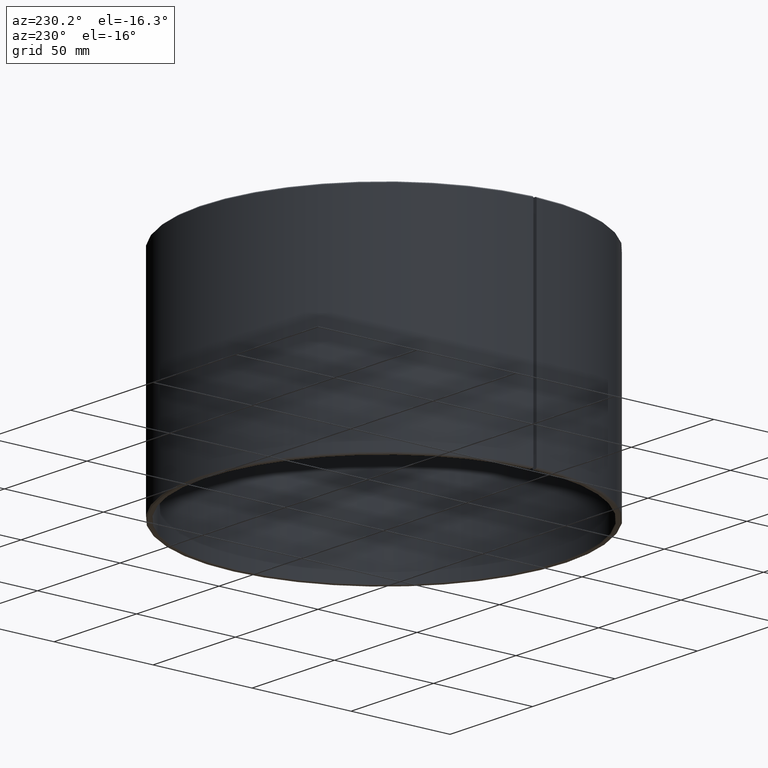
[diagram: clean part render]
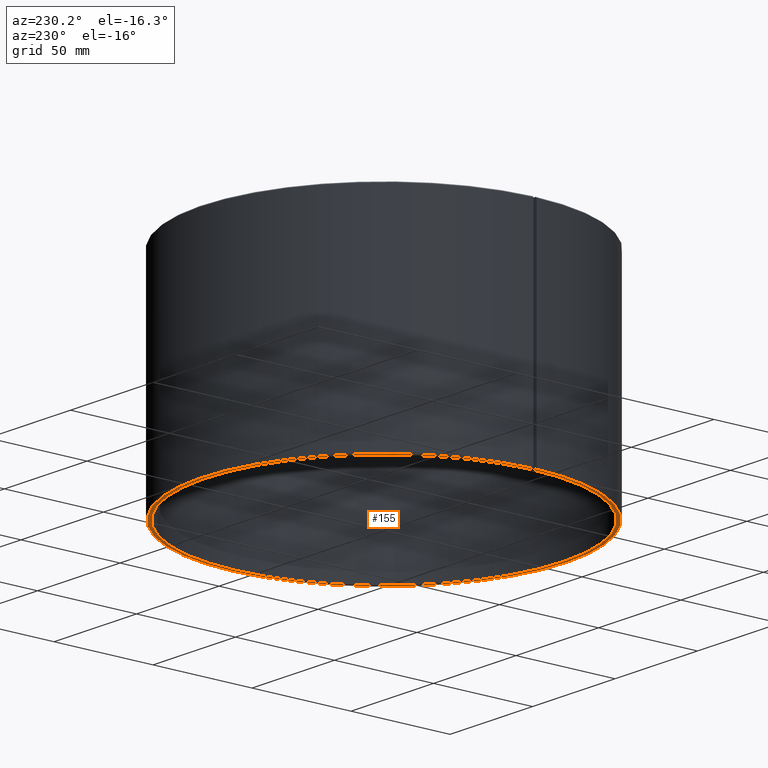
[diagram: same view with one face highlighted and labeled with its STEP entity id]
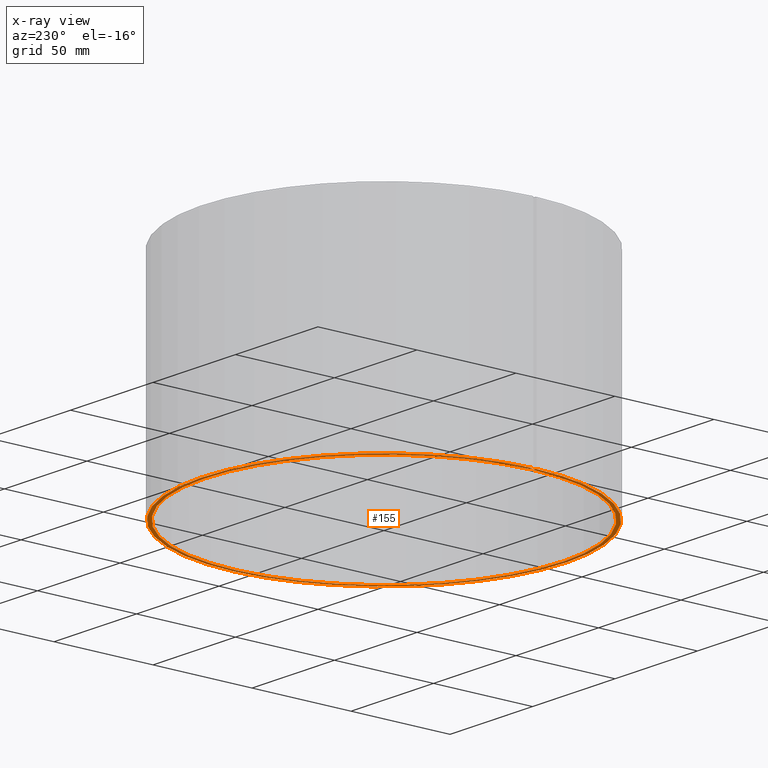
[diagram: x-ray of the same camera — body ghosted, the highlighted face saturated]
A machine part, auxiliary view. The second image highlights one B-rep face of the part: STEP entity #155.
The next image is the same camera in x-ray: the body ghosted, the highlighted face saturated — about 0% of this face is hidden behind the body in this view.
In plain terms, the highlighted planar face has unit normal (-0, 0, -1).
Its self-contained STEP definition (entity closure, byte-faithful):
#155=ADVANCED_FACE('',(#169),#170,.T.);
#169=FACE_OUTER_BOUND('',#190,.T.);
#170=PLANE('',#191);
#190=EDGE_LOOP('',(#220,#221,#222,#223));
#191=AXIS2_PLACEMENT_3D('',#224,#225,#226);
#220=ORIENTED_EDGE('',*,*,#291,.T.);
#221=ORIENTED_EDGE('',*,*,#292,.F.);
#222=ORIENTED_EDGE('',*,*,#288,.F.);
#223=ORIENTED_EDGE('',*,*,#293,.T.);
#224=CARTESIAN_POINT('',(0.00157420706064298,0.0901862621031065,9.56960886399267E-018));
#225=DIRECTION('',(6.12323399573677E-017,0.0,-1.0));
#226=DIRECTION('',(-1.0,0.0,-6.12323399573677E-017));
#288=EDGE_CURVE('',#316,#317,#318,.T.);
#291=EDGE_CURVE('',#321,#322,#323,.T.);
#292=EDGE_CURVE('',#317,#322,#324,.T.);
#293=EDGE_CURVE('',#316,#321,#325,.T.);
#316=VERTEX_POINT('',#358);
#317=VERTEX_POINT('',#359);
#318=CIRCLE('',#360,0.0902);
#321=VERTEX_POINT('',#365);
#322=VERTEX_POINT('',#366);
#323=CIRCLE('',#367,0.092);
#324=LINE('',#368,#369);
#325=LINE('',#370,#371);
#358=CARTESIAN_POINT('',(0.00157420706064298,0.0901862621031065,9.44763611958806E-018));
#359=CARTESIAN_POINT('',(-3.46944695195362E-018,0.0902,9.35124373768748E-018));
#360=AXIS2_PLACEMENT_3D('',#412,#413,#414);
#365=CARTESIAN_POINT('',(0.00160562139223009,0.091985987954388,9.69350518142857E-018));
#366=CARTESIAN_POINT('',(-3.46944695195362E-018,0.092,9.59518922649671E-018));
#367=AXIS2_PLACEMENT_3D('',#417,#418,#419);
#368=CARTESIAN_POINT('',(-3.46944695195362E-018,0.0902,9.33883084083592E-018));
#369=VECTOR('',#420,1.0);
#370=CARTESIAN_POINT('',(0.00157420706064298,0.0901862621031065,9.4352232227365E-018));
#371=VECTOR('',#421,1.0);
#412=CARTESIAN_POINT('',(-3.46944695195362E-018,-2.60208521396521E-018,9.35124373768748E-018));
#413=DIRECTION('',(6.12323399573677E-017,0.0,-1.0));
#414=DIRECTION('',(-1.0,0.0,-6.12323399573677E-017));
#417=CARTESIAN_POINT('',(-3.46944695195362E-018,-2.60208521396521E-018,9.59518922649671E-018));
#418=DIRECTION('',(6.12323399573677E-017,0.0,-1.0));
#419=DIRECTION('',(-1.0,0.0,-6.12323399573677E-017));
#420=DIRECTION('',(0.0,1.0,1.42421325367104E-016));
#421=DIRECTION('',(0.0174524064372836,0.999847695156391,1.43489977051146E-016));